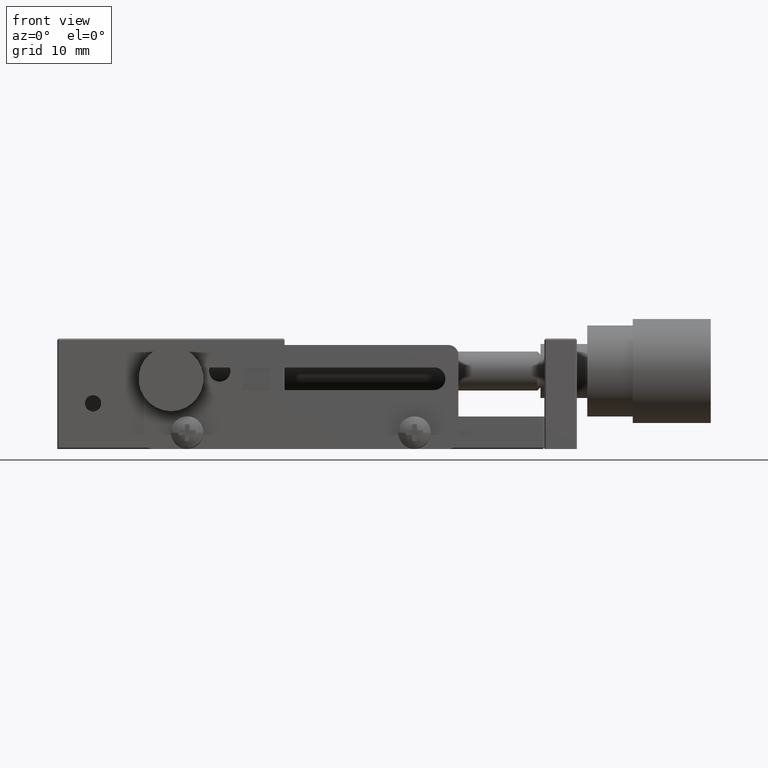
[diagram: clean part render]
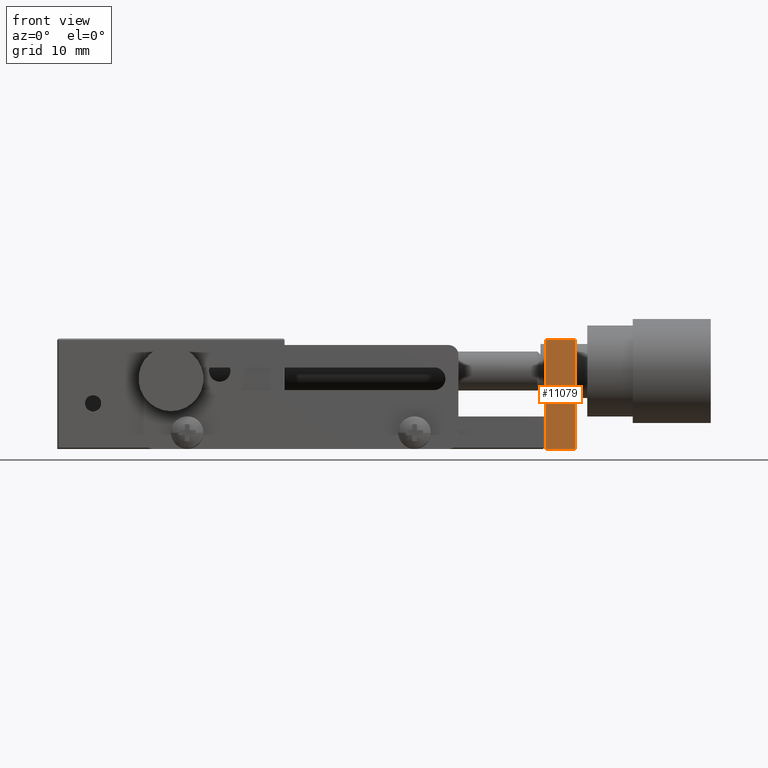
[diagram: same view with one face highlighted and labeled with its STEP entity id]
A machine part, front view. The second image highlights one B-rep face of the part: STEP entity #11079.
In plain terms, the highlighted planar face has unit normal (0, 1, -0).
Its self-contained STEP definition (entity closure, byte-faithful):
#628 = DIRECTION ( 'NONE',  ( 0.0000000000000000000, 1.000000000000000000, -0.0000000000000000000 ) ) ;
#672 = AXIS2_PLACEMENT_3D ( 'NONE', #6491, #628, #6571 ) ;
#769 = LINE ( 'NONE', #4888, #9612 ) ;
#1335 = LINE ( 'NONE', #10685, #5860 ) ;
#1340 = VERTEX_POINT ( 'NONE', #4002 ) ;
#2582 = EDGE_CURVE ( 'NONE', #1340, #7011, #7545, .T. ) ;
#2984 = DIRECTION ( 'NONE',  ( 1.000000000000000000, -0.0000000000000000000, -0.0000000000000000000 ) ) ;
#3134 = PLANE ( 'NONE',  #672 ) ;
#3447 = EDGE_CURVE ( 'NONE', #9355, #4632, #769, .T. ) ;
#3614 = ORIENTED_EDGE ( 'NONE', *, *, #3447, .F. ) ;
#3696 = DIRECTION ( 'NONE',  ( 1.000000000000000000, -0.0000000000000000000, -0.0000000000000000000 ) ) ;
#4002 = CARTESIAN_POINT ( 'NONE',  ( 37.70000000000000300, -17.50000000000000000, 0.0000000000000000000 ) ) ;
#4030 = ORIENTED_EDGE ( 'NONE', *, *, #2582, .F. ) ;
#4632 = VERTEX_POINT ( 'NONE', #5388 ) ;
#4888 = CARTESIAN_POINT ( 'NONE',  ( 42.29999999999999700, -17.50000000000000000, 8.400000000000000400 ) ) ;
#5388 = CARTESIAN_POINT ( 'NONE',  ( 42.29999999999999700, -17.50000000000000000, 0.0000000000000000000 ) ) ;
#5392 = LINE ( 'NONE', #8012, #9731 ) ;
#5508 = CARTESIAN_POINT ( 'NONE',  ( 37.70000000000000300, -17.50000000000000000, 8.400000000000000400 ) ) ;
#5780 = ORIENTED_EDGE ( 'NONE', *, *, #10978, .F. ) ;
#5860 = VECTOR ( 'NONE', #2984, 1000.000000000000000 ) ;
#6166 = ORIENTED_EDGE ( 'NONE', *, *, #9221, .T. ) ;
#6491 = CARTESIAN_POINT ( 'NONE',  ( 42.29999999999999700, -17.50000000000000000, 0.0000000000000000000 ) ) ;
#6571 = DIRECTION ( 'NONE',  ( -1.000000000000000000, 0.0000000000000000000, 0.0000000000000000000 ) ) ;
#7011 = VERTEX_POINT ( 'NONE', #7459 ) ;
#7272 = VECTOR ( 'NONE', #9099, 1000.000000000000000 ) ;
#7459 = CARTESIAN_POINT ( 'NONE',  ( 37.70000000000000300, -17.50000000000000000, 16.80000000000000100 ) ) ;
#7545 = LINE ( 'NONE', #5508, #7272 ) ;
#8012 = CARTESIAN_POINT ( 'NONE',  ( 40.00000000000000000, -17.50000000000000000, 0.0000000000000000000 ) ) ;
#8615 = FACE_OUTER_BOUND ( 'NONE', #10590, .T. ) ;
#9099 = DIRECTION ( 'NONE',  ( 0.0000000000000000000, 0.0000000000000000000, 1.000000000000000000 ) ) ;
#9221 = EDGE_CURVE ( 'NONE', #1340, #4632, #5392, .T. ) ;
#9355 = VERTEX_POINT ( 'NONE', #9939 ) ;
#9612 = VECTOR ( 'NONE', #10046, 1000.000000000000000 ) ;
#9731 = VECTOR ( 'NONE', #3696, 1000.000000000000000 ) ;
#9939 = CARTESIAN_POINT ( 'NONE',  ( 42.30000000000241300, -17.49999999999637600, 16.80000000000362400 ) ) ;
#10046 = DIRECTION ( 'NONE',  ( -0.0000000000000000000, -0.0000000000000000000, -1.000000000000000000 ) ) ;
#10590 = EDGE_LOOP ( 'NONE', ( #4030, #6166, #3614, #5780 ) ) ;
#10685 = CARTESIAN_POINT ( 'NONE',  ( 40.00000000000000000, -17.50000000000000000, 16.80000000000000100 ) ) ;
#10978 = EDGE_CURVE ( 'NONE', #7011, #9355, #1335, .T. ) ;
#11079 = ADVANCED_FACE ( 'NONE', ( #8615 ), #3134, .F. ) ;